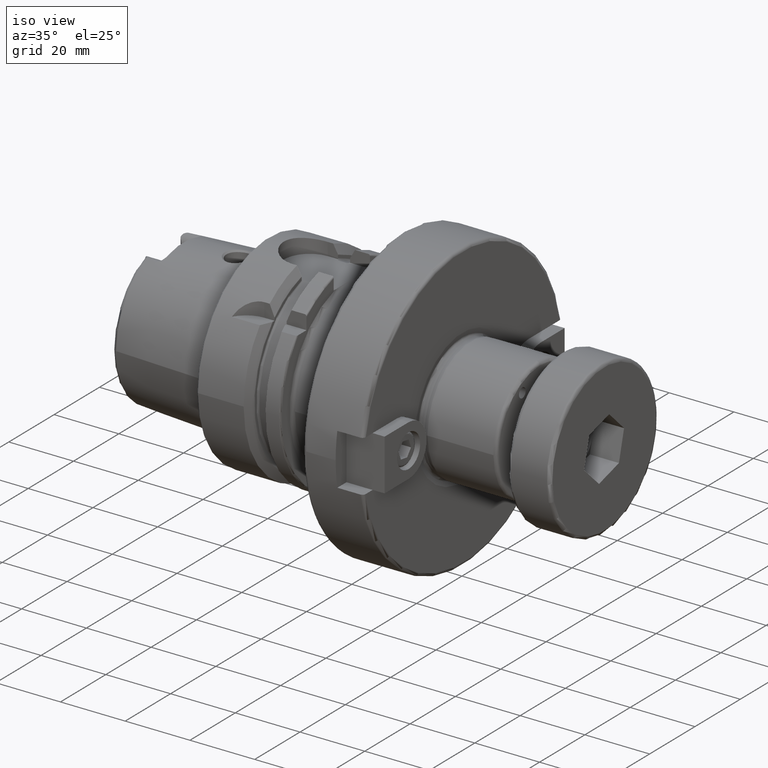
[diagram: clean part render]
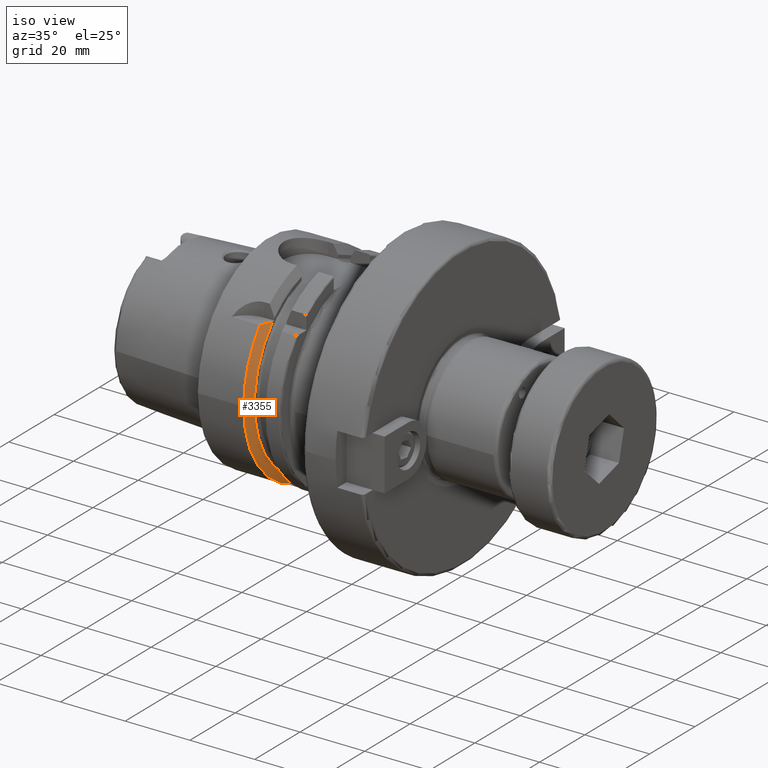
[diagram: same view with one face highlighted and labeled with its STEP entity id]
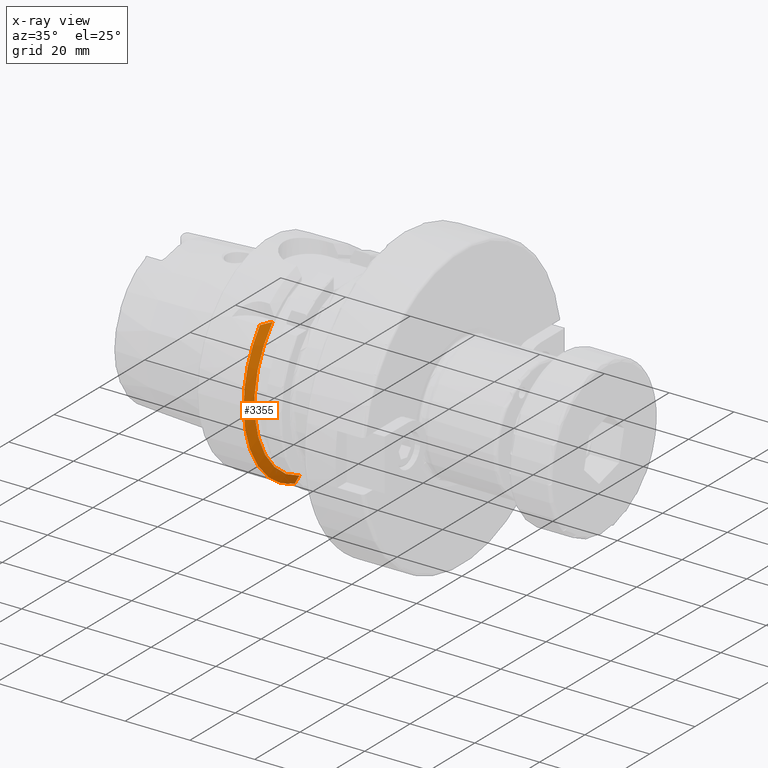
[diagram: x-ray of the same camera — body ghosted, the highlighted face saturated]
A machine part, iso view. The second image highlights one B-rep face of the part: STEP entity #3355.
The next image is the same camera in x-ray: the body ghosted, the highlighted face saturated — about 0% of this face is hidden behind the body in this view.
In plain terms, the highlighted conical surface has half-angle 60 deg.
Its self-contained STEP definition (entity closure, byte-faithful):
#56=(
BOUNDED_CURVE()
B_SPLINE_CURVE(2,(#6334,#6335,#6336),.UNSPECIFIED.,.F.,.F.)
B_SPLINE_CURVE_WITH_KNOTS((3,3),(0.,0.378858277140998),.UNSPECIFIED.)
CURVE()
GEOMETRIC_REPRESENTATION_ITEM()
RATIONAL_B_SPLINE_CURVE((1.,1.00166199353848,1.))
REPRESENTATION_ITEM('')
);
#59=(
BOUNDED_CURVE()
B_SPLINE_CURVE(2,(#6394,#6395,#6396),.UNSPECIFIED.,.F.,.F.)
B_SPLINE_CURVE_WITH_KNOTS((3,3),(0.,0.311314369989023),.UNSPECIFIED.)
CURVE()
GEOMETRIC_REPRESENTATION_ITEM()
RATIONAL_B_SPLINE_CURVE((1.,1.00102053193494,1.))
REPRESENTATION_ITEM('')
);
#96=CONICAL_SURFACE('',#3766,30.1987976320958,1.0471975511966);
#322=CIRCLE('',#3763,28.8975952641916);
#325=CIRCLE('',#3767,31.5);
#326=CIRCLE('',#3768,31.5);
#520=FACE_OUTER_BOUND('',#737,.T.);
#737=EDGE_LOOP('',(#2575,#2576,#2577,#2578,#2579));
#1499=VERTEX_POINT('',#6326);
#1502=VERTEX_POINT('',#6332);
#1509=VERTEX_POINT('',#6380);
#1513=VERTEX_POINT('',#6390);
#1514=VERTEX_POINT('',#6392);
#1896=EDGE_CURVE('',#1499,#1502,#56,.T.);
#1906=EDGE_CURVE('',#1499,#1509,#322,.T.);
#1911=EDGE_CURVE('',#1502,#1513,#325,.T.);
#1912=EDGE_CURVE('',#1513,#1514,#326,.T.);
#1913=EDGE_CURVE('',#1514,#1509,#59,.T.);
#2575=ORIENTED_EDGE('',*,*,#1896,.T.);
#2576=ORIENTED_EDGE('',*,*,#1911,.T.);
#2577=ORIENTED_EDGE('',*,*,#1912,.T.);
#2578=ORIENTED_EDGE('',*,*,#1913,.T.);
#2579=ORIENTED_EDGE('',*,*,#1906,.F.);
#3355=ADVANCED_FACE('',(#520),#96,.T.);
#3763=AXIS2_PLACEMENT_3D('',#6381,#4455,#4456);
#3766=AXIS2_PLACEMENT_3D('',#6389,#4463,#4464);
#3767=AXIS2_PLACEMENT_3D('',#6391,#4465,#4466);
#3768=AXIS2_PLACEMENT_3D('',#6393,#4467,#4468);
#4455=DIRECTION('center_axis',(1.,0.,0.));
#4456=DIRECTION('ref_axis',(0.,0.,-1.));
#4463=DIRECTION('center_axis',(-1.,0.,0.));
#4464=DIRECTION('ref_axis',(0.,-0.966819045705046,-0.255462194584608));
#4465=DIRECTION('center_axis',(1.,0.,0.));
#4466=DIRECTION('ref_axis',(0.,0.,-1.));
#4467=DIRECTION('center_axis',(1.,0.,0.));
#4468=DIRECTION('ref_axis',(0.,0.,-1.));
#6326=CARTESIAN_POINT('',(16.125,-20.8583559288126,20.));
#6332=CARTESIAN_POINT('',(14.6225009252407,-24.3361870472759,20.));
#6334=CARTESIAN_POINT('Ctrl Pts',(16.125,-20.8583559288126,20.));
#6335=CARTESIAN_POINT('Ctrl Pts',(15.4315609602333,-22.5223452916163,20.));
#6336=CARTESIAN_POINT('Ctrl Pts',(14.6225009252407,-24.3361870472759,20.));
#6380=CARTESIAN_POINT('',(16.125,-9.,-27.4603534582684));
#6381=CARTESIAN_POINT('Origin',(16.125,0.,0.));
#6389=CARTESIAN_POINT('Origin',(15.3737504626203,0.,0.));
#6390=CARTESIAN_POINT('',(14.6225009252407,-31.5,-3.85763741731416E-15));
#6391=CARTESIAN_POINT('Origin',(14.6225009252407,0.,0.));
#6392=CARTESIAN_POINT('',(14.6225009252407,-9.,-30.1869176962472));
#6393=CARTESIAN_POINT('Origin',(14.6225009252407,0.,0.));
#6394=CARTESIAN_POINT('Ctrl Pts',(14.6225009252407,-9.,-30.1869176962472));
#6395=CARTESIAN_POINT('Ctrl Pts',(15.4092825889741,-9.,-28.7648946319013));
#6396=CARTESIAN_POINT('Ctrl Pts',(16.125,-9.,-27.4603534582684));